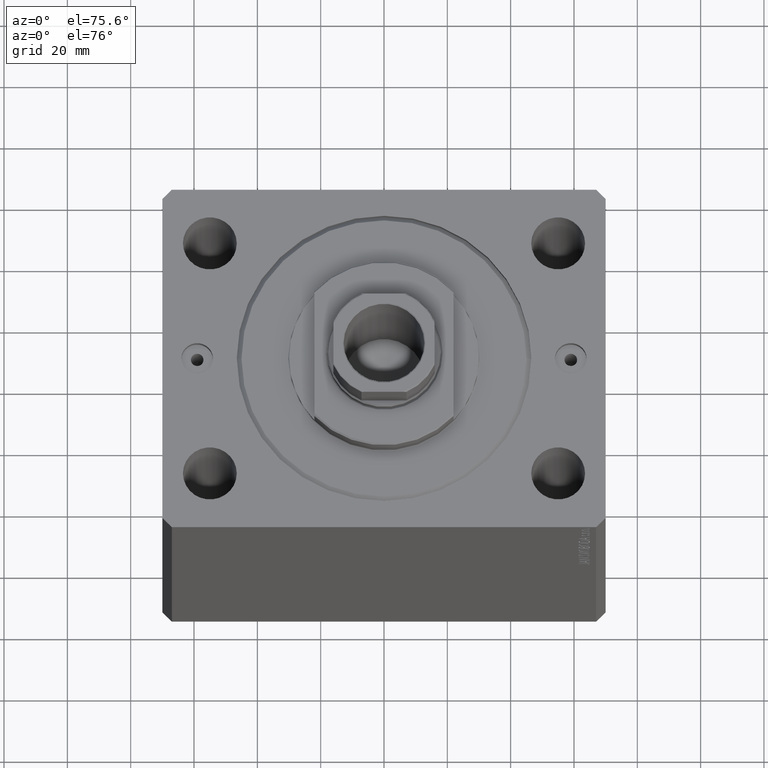
[diagram: clean part render]
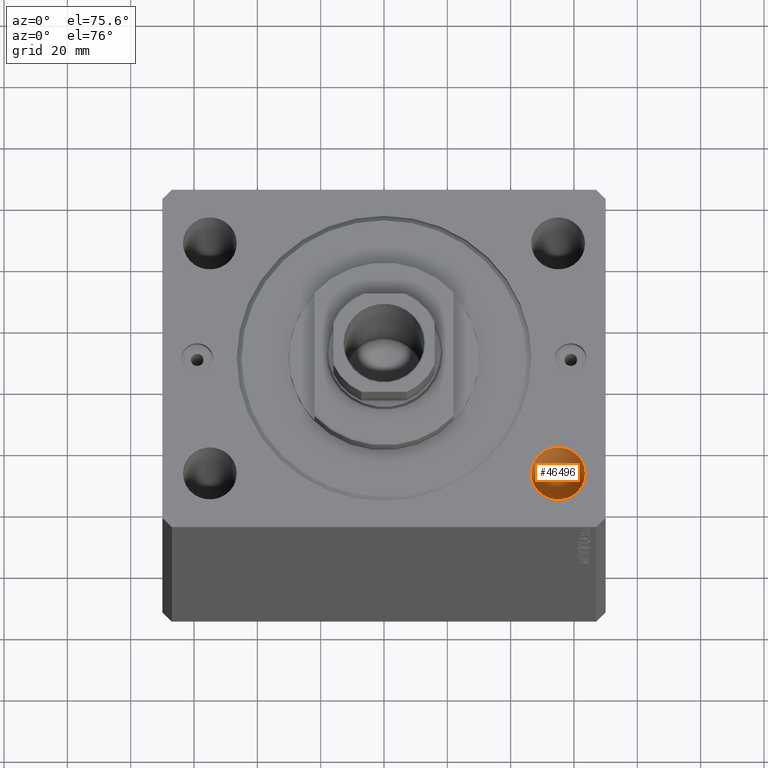
[diagram: same view with one face highlighted and labeled with its STEP entity id]
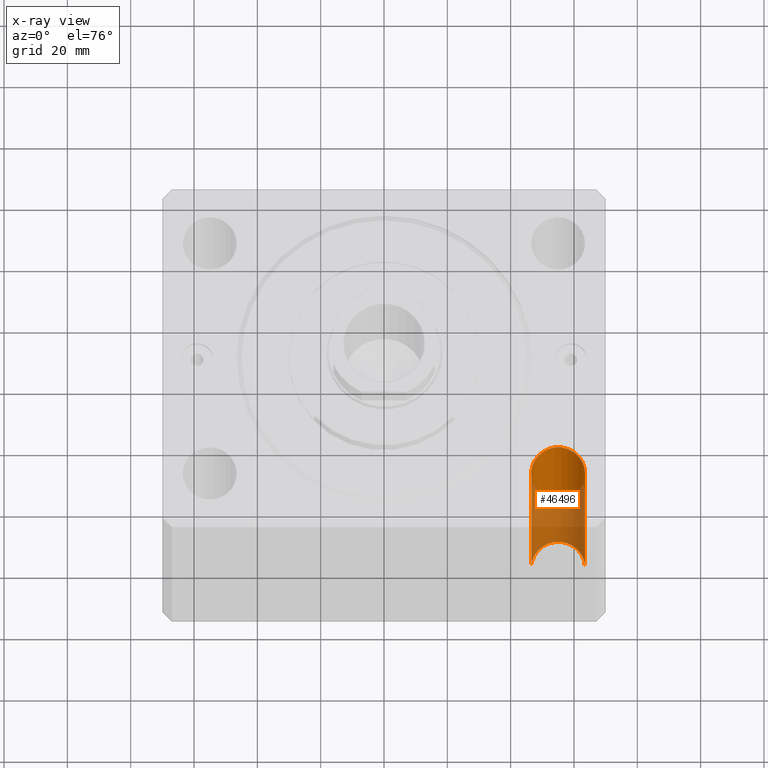
[diagram: x-ray of the same camera — body ghosted, the highlighted face saturated]
A machine part, auxiliary view. The second image highlights one B-rep face of the part: STEP entity #46496.
The next image is the same camera in x-ray: the body ghosted, the highlighted face saturated — about 56% of this face is hidden behind the body in this view.
In plain terms, the highlighted cylindrical surface (edge-blend (fillet) strip) has radius 8.5 mm, axis along (0, 0, 1).
Its self-contained STEP definition (entity closure, byte-faithful):
#427 = CIRCLE ( 'NONE', #33967, 8.500000000000000000 ) ;
#4180 = LINE ( 'NONE', #25636, #19696 ) ;
#4559 = CARTESIAN_POINT ( 'NONE',  ( 46.49999999999998579, -37.50000000000000711, -120.0000000000000000 ) ) ;
#9083 = DIRECTION ( 'NONE',  ( -0.000000000000000000, -0.000000000000000000, 1.000000000000000000 ) ) ;
#10975 = DIRECTION ( 'NONE',  ( 1.000000000000000000, 0.000000000000000000, 0.000000000000000000 ) ) ;
#16586 = ORIENTED_EDGE ( 'NONE', *, *, #21342, .T. ) ;
#16717 = CARTESIAN_POINT ( 'NONE',  ( 63.49999999999998579, -37.50000000000000711, 0.000000000000000000 ) ) ;
#18718 = AXIS2_PLACEMENT_3D ( 'NONE', #19844, #9083, #40890 ) ;
#19152 = CYLINDRICAL_SURFACE ( 'NONE', #18718, 8.500000000000000000 ) ;
#19696 = VECTOR ( 'NONE', #21828, 1000.000000000000000 ) ;
#19844 = CARTESIAN_POINT ( 'NONE',  ( 54.99999999999998579, -37.50000000000000711, -144.0416305603426395 ) ) ;
#21342 = EDGE_CURVE ( 'NONE', #33095, #31792, #4180, .T. ) ;
#21828 = DIRECTION ( 'NONE',  ( -0.000000000000000000, -0.000000000000000000, 1.000000000000000000 ) ) ;
#22168 = DIRECTION ( 'NONE',  ( 0.000000000000000000, 0.000000000000000000, 1.000000000000000000 ) ) ;
#22199 = CARTESIAN_POINT ( 'NONE',  ( 54.99999999999998579, -37.50000000000000711, -120.0000000000000000 ) ) ;
#23234 = DIRECTION ( 'NONE',  ( -0.000000000000000000, -0.000000000000000000, 1.000000000000000000 ) ) ;
#23624 = CIRCLE ( 'NONE', #35848, 8.500000000000000000 ) ;
#25636 = CARTESIAN_POINT ( 'NONE',  ( 63.49999999999998579, -37.50000000000000711, -144.0416305603426395 ) ) ;
#26670 = VECTOR ( 'NONE', #23234, 1000.000000000000000 ) ;
#27429 = EDGE_LOOP ( 'NONE', ( #34265, #31773, #16586, #45238 ) ) ;
#28162 = EDGE_CURVE ( 'NONE', #35769, #45048, #44960, .T. ) ;
#29359 = CARTESIAN_POINT ( 'NONE',  ( 63.49999999999998579, -37.50000000000000711, -120.0000000000000000 ) ) ;
#29795 = CARTESIAN_POINT ( 'NONE',  ( 46.49999999999998579, -37.50000000000000711, 0.000000000000000000 ) ) ;
#29841 = EDGE_CURVE ( 'NONE', #31792, #45048, #23624, .T. ) ;
#30394 = CARTESIAN_POINT ( 'NONE',  ( 46.49999999999998579, -37.50000000000000711, -144.0416305603426395 ) ) ;
#30827 = FACE_OUTER_BOUND ( 'NONE', #27429, .T. ) ;
#31773 = ORIENTED_EDGE ( 'NONE', *, *, #46738, .T. ) ;
#31792 = VERTEX_POINT ( 'NONE', #16717 ) ;
#32912 = CARTESIAN_POINT ( 'NONE',  ( 54.99999999999998579, -37.50000000000000711, 0.000000000000000000 ) ) ;
#33095 = VERTEX_POINT ( 'NONE', #29359 ) ;
#33184 = DIRECTION ( 'NONE',  ( -0.000000000000000000, -0.000000000000000000, -1.000000000000000000 ) ) ;
#33967 = AXIS2_PLACEMENT_3D ( 'NONE', #22199, #33184, #10975 ) ;
#34265 = ORIENTED_EDGE ( 'NONE', *, *, #28162, .F. ) ;
#35769 = VERTEX_POINT ( 'NONE', #4559 ) ;
#35848 = AXIS2_PLACEMENT_3D ( 'NONE', #32912, #22168, #40806 ) ;
#40806 = DIRECTION ( 'NONE',  ( 1.000000000000000000, 0.000000000000000000, 0.000000000000000000 ) ) ;
#40890 = DIRECTION ( 'NONE',  ( 1.000000000000000000, 0.000000000000000000, 0.000000000000000000 ) ) ;
#44960 = LINE ( 'NONE', #30394, #26670 ) ;
#45048 = VERTEX_POINT ( 'NONE', #29795 ) ;
#45238 = ORIENTED_EDGE ( 'NONE', *, *, #29841, .T. ) ;
#46496 = ADVANCED_FACE ( 'NONE', ( #30827 ), #19152, .F. ) ;
#46738 = EDGE_CURVE ( 'NONE', #35769, #33095, #427, .T. ) ;